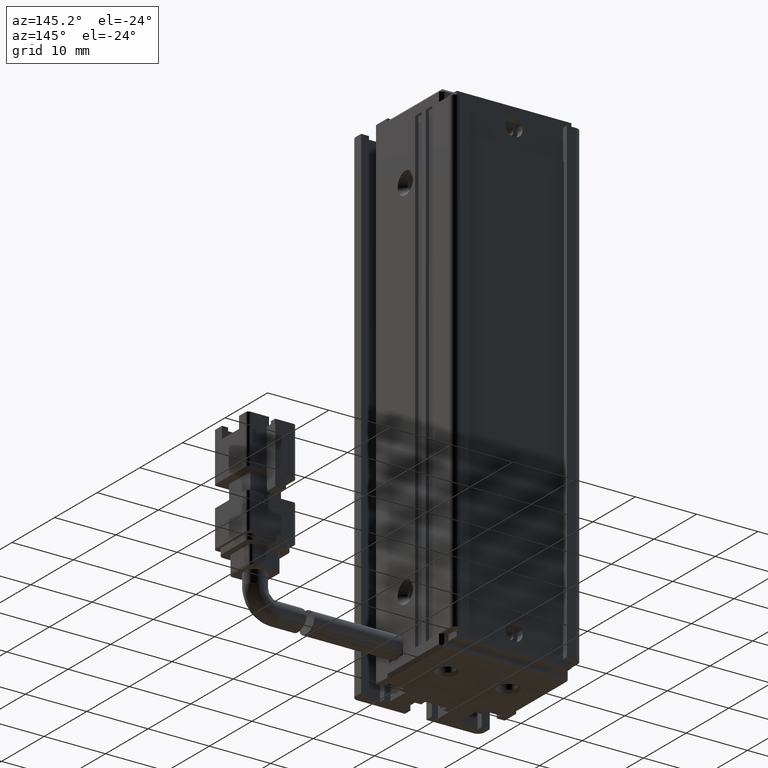
[diagram: clean part render]
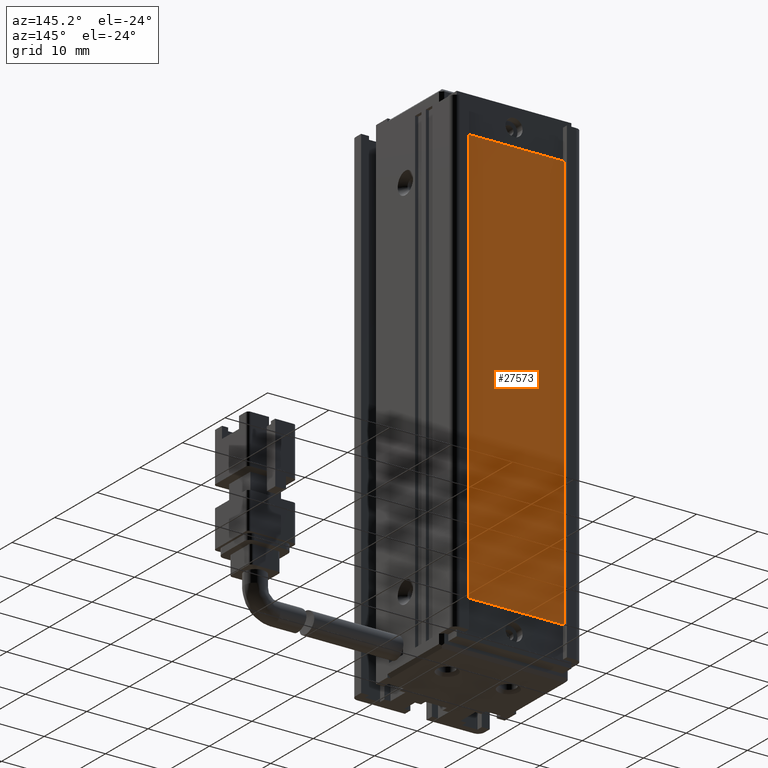
[diagram: same view with one face highlighted and labeled with its STEP entity id]
A machine part, auxiliary view. The second image highlights one B-rep face of the part: STEP entity #27573.
In plain terms, the highlighted planar face has unit normal (0, -1, 0).
Its self-contained STEP definition (entity closure, byte-faithful):
#2671 = VERTEX_POINT ( 'NONE', #27652 ) ;
#2794 = ORIENTED_EDGE ( 'NONE', *, *, #22857, .T. ) ;
#2884 = LINE ( 'NONE', #28193, #16180 ) ;
#3126 = DIRECTION ( 'NONE',  ( 0.001229537111942194800, 0.0000000000000000000, -0.9999992441189594600 ) ) ;
#3320 = VERTEX_POINT ( 'NONE', #11981 ) ;
#4305 = EDGE_CURVE ( 'NONE', #9305, #17599, #23290, .T. ) ;
#4618 = ORIENTED_EDGE ( 'NONE', *, *, #11634, .T. ) ;
#6482 = DIRECTION ( 'NONE',  ( 0.0000000000000000000, -0.0000000000000000000, -1.000000000000000000 ) ) ;
#6894 = CARTESIAN_POINT ( 'NONE',  ( 40.92537974683542500, 34.29073232304836700, -148.9999743000446400 ) ) ;
#8241 = ORIENTED_EDGE ( 'NONE', *, *, #19682, .T. ) ;
#8978 = DIRECTION ( 'NONE',  ( -1.000000000000000000, -0.0000000000000000000, -0.0000000000000000000 ) ) ;
#9305 = VERTEX_POINT ( 'NONE', #25437 ) ;
#10212 = CARTESIAN_POINT ( 'NONE',  ( 32.92537974683541800, 34.29073232304836700, -81.00002569995537300 ) ) ;
#10540 = DIRECTION ( 'NONE',  ( -1.020426345424931700E-016, -0.0000000000000000000, 1.000000000000000000 ) ) ;
#10901 = CARTESIAN_POINT ( 'NONE',  ( 48.92537974683541800, 34.29073232304836700, -81.00002569995537300 ) ) ;
#11634 = EDGE_CURVE ( 'NONE', #2671, #9305, #23377, .T. ) ;
#11981 = CARTESIAN_POINT ( 'NONE',  ( 48.88357548502938200, 34.29073232304836700, -115.0000000000000000 ) ) ;
#15617 = PLANE ( 'NONE',  #17739 ) ;
#15762 = VECTOR ( 'NONE', #27783, 1000.000000000000000 ) ;
#16155 = LINE ( 'NONE', #20831, #15762 ) ;
#16180 = VECTOR ( 'NONE', #3126, 1000.000000000000000 ) ;
#17049 = ORIENTED_EDGE ( 'NONE', *, *, #23752, .T. ) ;
#17599 = VERTEX_POINT ( 'NONE', #10212 ) ;
#17739 = AXIS2_PLACEMENT_3D ( 'NONE', #25230, #18157, #6482 ) ;
#17926 = VECTOR ( 'NONE', #8978, 1000.000000000000000 ) ;
#18157 = DIRECTION ( 'NONE',  ( 0.0000000000000000000, -1.000000000000000000, 0.0000000000000000000 ) ) ;
#19682 = EDGE_CURVE ( 'NONE', #3320, #2671, #2884, .T. ) ;
#19861 = CARTESIAN_POINT ( 'NONE',  ( 48.92537974683541800, 34.29073232304836700, -81.00002569995537300 ) ) ;
#20733 = LINE ( 'NONE', #10901, #25777 ) ;
#20831 = CARTESIAN_POINT ( 'NONE',  ( 48.88357548502938200, 34.29073232304836700, -115.0000000000000000 ) ) ;
#21252 = EDGE_LOOP ( 'NONE', ( #2794, #8241, #4618, #25440, #17049 ) ) ;
#22857 = EDGE_CURVE ( 'NONE', #27283, #3320, #16155, .T. ) ;
#23290 = LINE ( 'NONE', #26779, #25090 ) ;
#23377 = LINE ( 'NONE', #6894, #17926 ) ;
#23752 = EDGE_CURVE ( 'NONE', #17599, #27283, #20733, .T. ) ;
#24916 = FACE_OUTER_BOUND ( 'NONE', #21252, .T. ) ;
#25090 = VECTOR ( 'NONE', #10540, 1000.000000000000000 ) ;
#25230 = CARTESIAN_POINT ( 'NONE',  ( 3.945203280693372700E-033, 34.29073232304836700, -6.110568525463850200E-050 ) ) ;
#25437 = CARTESIAN_POINT ( 'NONE',  ( 32.92537974683542500, 34.29073232304836700, -148.9999743000446400 ) ) ;
#25440 = ORIENTED_EDGE ( 'NONE', *, *, #4305, .T. ) ;
#25777 = VECTOR ( 'NONE', #29443, 1000.000000000000000 ) ;
#26779 = CARTESIAN_POINT ( 'NONE',  ( 32.92537974683541800, 34.29073232304836700, -81.00002569995537300 ) ) ;
#27283 = VERTEX_POINT ( 'NONE', #19861 ) ;
#27573 = ADVANCED_FACE ( 'NONE', ( #24916 ), #15617, .F. ) ;
#27652 = CARTESIAN_POINT ( 'NONE',  ( 48.92537974683541800, 34.29073232304836700, -148.9999743000446400 ) ) ;
#27783 = DIRECTION ( 'NONE',  ( -0.001229537111942194800, -0.0000000000000000000, -0.9999992441189594600 ) ) ;
#28193 = CARTESIAN_POINT ( 'NONE',  ( 48.88357548502938200, 34.29073232304836700, -115.0000000000000000 ) ) ;
#29443 = DIRECTION ( 'NONE',  ( 1.000000000000000000, -0.0000000000000000000, -0.0000000000000000000 ) ) ;